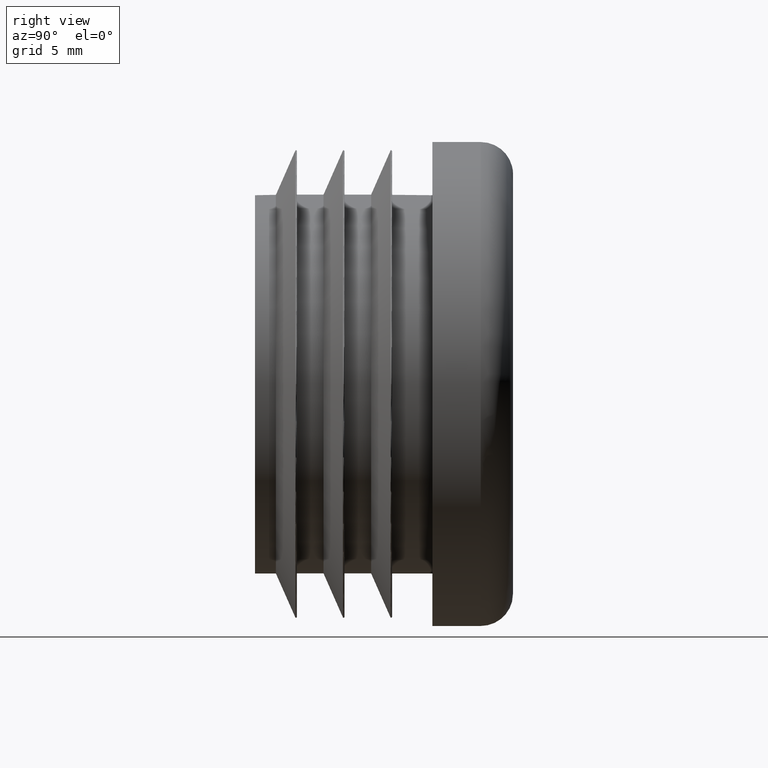
[diagram: clean part render]
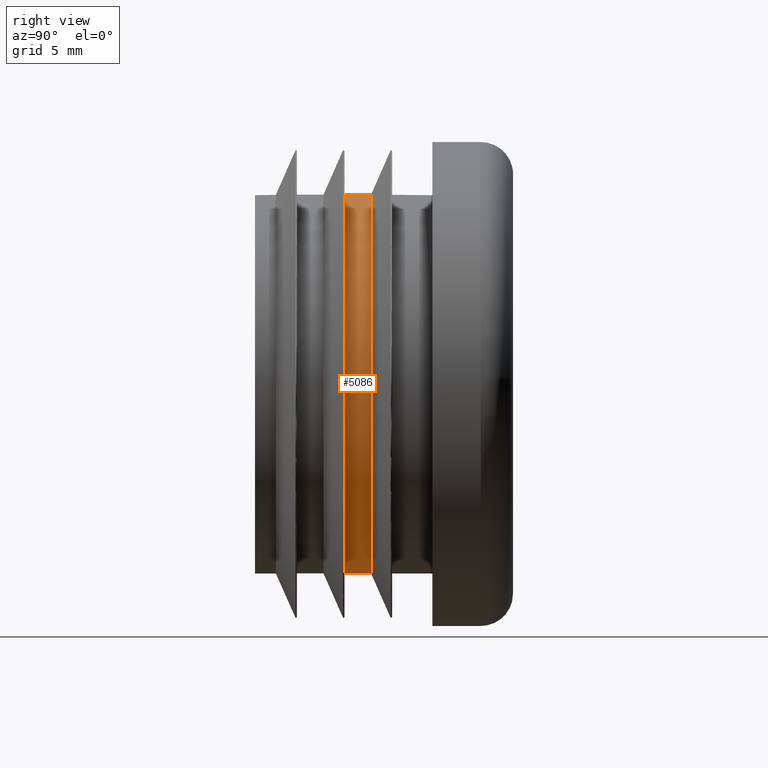
[diagram: same view with one face highlighted and labeled with its STEP entity id]
A machine part, right view. The second image highlights one B-rep face of the part: STEP entity #5086.
In plain terms, the highlighted cylindrical surface (bore or boss wall) has radius 11.75 mm, axis along (-0, -1, -0).
Its self-contained STEP definition (entity closure, byte-faithful):
#322 = FACE_OUTER_BOUND ( 'NONE', #4186, .T. ) ;
#673 = ORIENTED_EDGE ( 'NONE', *, *, #3821, .F. ) ;
#678 = CARTESIAN_POINT ( 'NONE',  ( 0.000000000000000000, 5.550000000000016698, 0.000000000000000000 ) ) ;
#728 = CYLINDRICAL_SURFACE ( 'NONE', #5163, 11.75000000000000000 ) ;
#1051 = VERTEX_POINT ( 'NONE', #9248 ) ;
#1246 = DIRECTION ( 'NONE',  ( -1.000000000000000000, -1.048215887611517492E-14, 0.000000000000000000 ) ) ;
#1316 = EDGE_CURVE ( 'NONE', #1051, #1051, #9232, .T. ) ;
#1526 = CARTESIAN_POINT ( 'NONE',  ( 0.000000000000000000, 11.00000000000000000, 0.000000000000000000 ) ) ;
#2188 = EDGE_LOOP ( 'NONE', ( #2340 ) ) ;
#2340 = ORIENTED_EDGE ( 'NONE', *, *, #1316, .F. ) ;
#2387 = DIRECTION ( 'NONE',  ( 0.000000000000000000, 0.000000000000000000, -1.000000000000000000 ) ) ;
#2489 = FACE_OUTER_BOUND ( 'NONE', #2188, .T. ) ;
#2950 = CARTESIAN_POINT ( 'NONE',  ( -7.541599691901300576E-14, 7.200000000000125411, 0.000000000000000000 ) ) ;
#3821 = EDGE_CURVE ( 'NONE', #3901, #3901, #7568, .T. ) ;
#3901 = VERTEX_POINT ( 'NONE', #11180 ) ;
#4186 = EDGE_LOOP ( 'NONE', ( #673 ) ) ;
#4932 = AXIS2_PLACEMENT_3D ( 'NONE', #678, #11024, #7682 ) ;
#5086 = ADVANCED_FACE ( 'NONE', ( #2489, #322 ), #728, .T. ) ;
#5163 = AXIS2_PLACEMENT_3D ( 'NONE', #1526, #7533, #2387 ) ;
#5531 = DIRECTION ( 'NONE',  ( -1.047444401652940164E-14, 1.000000000000000000, 0.000000000000000000 ) ) ;
#5982 = AXIS2_PLACEMENT_3D ( 'NONE', #2950, #5531, #1246 ) ;
#7533 = DIRECTION ( 'NONE',  ( -0.000000000000000000, -1.000000000000000000, -0.000000000000000000 ) ) ;
#7568 = CIRCLE ( 'NONE', #5982, 11.75000000000000000 ) ;
#7682 = DIRECTION ( 'NONE',  ( -1.000000000000000000, -1.048215887611517492E-14, 0.000000000000000000 ) ) ;
#9232 = CIRCLE ( 'NONE', #4932, 11.75000000000000000 ) ;
#9248 = CARTESIAN_POINT ( 'NONE',  ( -11.75000000000000000, 5.549999999999893241, 0.000000000000000000 ) ) ;
#11024 = DIRECTION ( 'NONE',  ( 1.047444401652940164E-14, -1.000000000000000000, -0.000000000000000000 ) ) ;
#11180 = CARTESIAN_POINT ( 'NONE',  ( -11.75000000000007461, 7.200000000000002842, 0.000000000000000000 ) ) ;